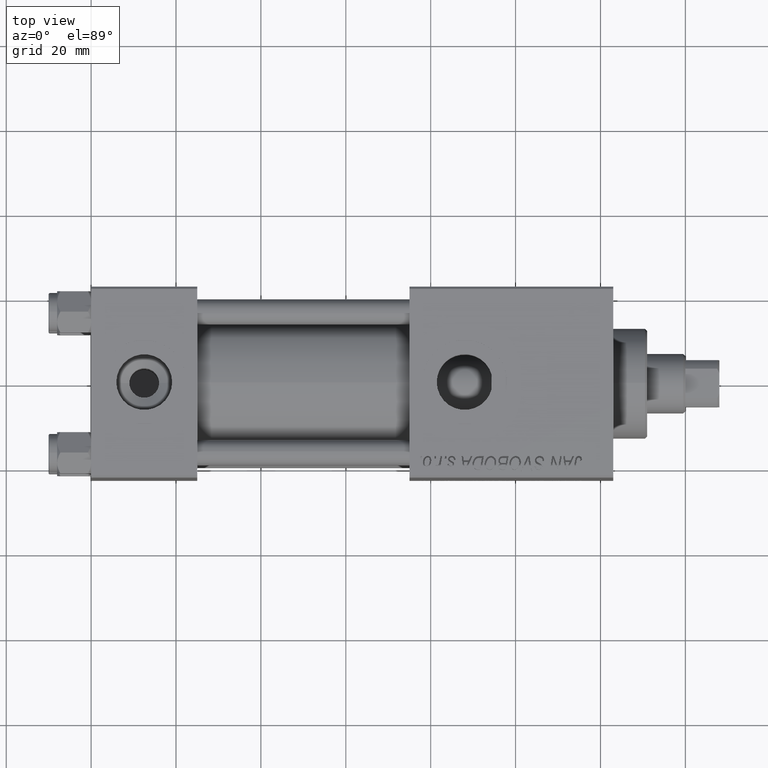
[diagram: clean part render]
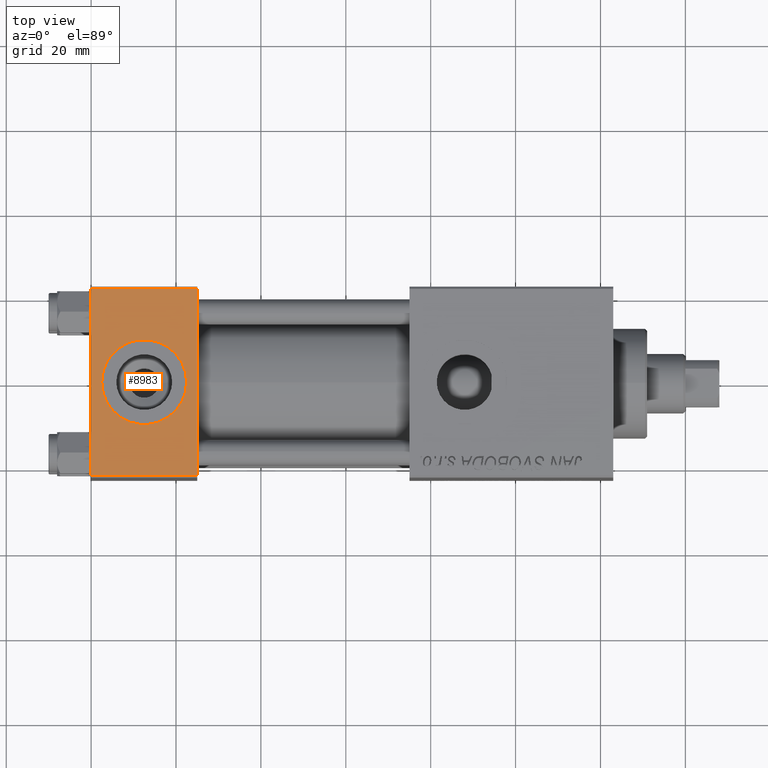
[diagram: same view with one face highlighted and labeled with its STEP entity id]
A machine part, top view. The second image highlights one B-rep face of the part: STEP entity #8983.
In plain terms, the highlighted planar face has unit normal (0, 0, -1).
Its self-contained STEP definition (entity closure, byte-faithful):
#844 = VECTOR ( 'NONE', #40998, 1000.000000000000000 ) ;
#997 = EDGE_LOOP ( 'NONE', ( #37634, #46307 ) ) ;
#1647 = AXIS2_PLACEMENT_3D ( 'NONE', #30273, #18955, #14973 ) ;
#2123 = CARTESIAN_POINT ( 'NONE',  ( 25.00000000000000000, -21.99999999999999289, 22.50000000000000000 ) ) ;
#2391 = LINE ( 'NONE', #34575, #40016 ) ;
#3189 = CARTESIAN_POINT ( 'NONE',  ( 12.50000000000000000, -1.734723475976807094E-15, 22.50000000000000000 ) ) ;
#3320 = EDGE_CURVE ( 'NONE', #19225, #48081, #19295, .T. ) ;
#4032 = CARTESIAN_POINT ( 'NONE',  ( 12.50000000000000000, -1.734723475976807094E-15, 22.50000000000000000 ) ) ;
#4442 = EDGE_CURVE ( 'NONE', #10366, #4899, #48364, .T. ) ;
#4899 = VERTEX_POINT ( 'NONE', #29724 ) ;
#6144 = ORIENTED_EDGE ( 'NONE', *, *, #28243, .T. ) ;
#6809 = FACE_BOUND ( 'NONE', #997, .T. ) ;
#7342 = VERTEX_POINT ( 'NONE', #34194 ) ;
#8983 = ADVANCED_FACE ( 'NONE', ( #6809, #34761 ), #22889, .F. ) ;
#9155 = AXIS2_PLACEMENT_3D ( 'NONE', #4032, #40428, #40695 ) ;
#9489 = VECTOR ( 'NONE', #41950, 1000.000000000000000 ) ;
#10366 = VERTEX_POINT ( 'NONE', #42030 ) ;
#10406 = ORIENTED_EDGE ( 'NONE', *, *, #43221, .T. ) ;
#10815 = LINE ( 'NONE', #2123, #9489 ) ;
#11125 = CARTESIAN_POINT ( 'NONE',  ( 22.50000000000000000, -1.734723475976807094E-15, 22.50000000000000000 ) ) ;
#14973 = DIRECTION ( 'NONE',  ( 0.000000000000000000, 1.000000000000000000, 7.709882115452476934E-17 ) ) ;
#18465 = VECTOR ( 'NONE', #36742, 1000.000000000000000 ) ;
#18955 = DIRECTION ( 'NONE',  ( 0.000000000000000000, 7.709882115452476934E-17, -1.000000000000000000 ) ) ;
#19225 = VERTEX_POINT ( 'NONE', #11125 ) ;
#19295 = CIRCLE ( 'NONE', #9155, 9.999999999999998224 ) ;
#19812 = DIRECTION ( 'NONE',  ( 0.000000000000000000, 0.000000000000000000, 1.000000000000000000 ) ) ;
#20658 = CARTESIAN_POINT ( 'NONE',  ( 0.000000000000000000, 22.50000000000000000, 22.50000000000000355 ) ) ;
#21220 = AXIS2_PLACEMENT_3D ( 'NONE', #3189, #19812, #39844 ) ;
#22889 = PLANE ( 'NONE',  #1647 ) ;
#28243 = EDGE_CURVE ( 'NONE', #4899, #45199, #10815, .T. ) ;
#29724 = CARTESIAN_POINT ( 'NONE',  ( 0.000000000000000000, -21.99999999999997868, 22.50000000000000000 ) ) ;
#30273 = CARTESIAN_POINT ( 'NONE',  ( 25.00000000000000000, 22.50000000000000000, 22.50000000000000355 ) ) ;
#30477 = CIRCLE ( 'NONE', #21220, 9.999999999999998224 ) ;
#32619 = CARTESIAN_POINT ( 'NONE',  ( 25.00000000000000000, -21.99999999999997868, 22.50000000000000000 ) ) ;
#34194 = CARTESIAN_POINT ( 'NONE',  ( 25.00000000000000000, 21.99999999999999289, 22.50000000000000355 ) ) ;
#34575 = CARTESIAN_POINT ( 'NONE',  ( 25.00000000000000000, 22.50000000000000000, 22.50000000000000355 ) ) ;
#34761 = FACE_OUTER_BOUND ( 'NONE', #44612, .T. ) ;
#35501 = EDGE_CURVE ( 'NONE', #7342, #45199, #2391, .T. ) ;
#36742 = DIRECTION ( 'NONE',  ( 0.000000000000000000, -1.000000000000000000, -7.709882115452476934E-17 ) ) ;
#37634 = ORIENTED_EDGE ( 'NONE', *, *, #3320, .F. ) ;
#39844 = DIRECTION ( 'NONE',  ( 1.000000000000000000, 0.000000000000000000, 0.000000000000000000 ) ) ;
#40016 = VECTOR ( 'NONE', #45929, 1000.000000000000000 ) ;
#40428 = DIRECTION ( 'NONE',  ( 0.000000000000000000, 0.000000000000000000, 1.000000000000000000 ) ) ;
#40695 = DIRECTION ( 'NONE',  ( 1.000000000000000000, 0.000000000000000000, 0.000000000000000000 ) ) ;
#40998 = DIRECTION ( 'NONE',  ( -1.000000000000000000, 0.000000000000000000, 0.000000000000000000 ) ) ;
#41950 = DIRECTION ( 'NONE',  ( 1.000000000000000000, 0.000000000000000000, 0.000000000000000000 ) ) ;
#42030 = CARTESIAN_POINT ( 'NONE',  ( 0.000000000000000000, 21.99999999999999289, 22.50000000000000355 ) ) ;
#42903 = ORIENTED_EDGE ( 'NONE', *, *, #4442, .T. ) ;
#43221 = EDGE_CURVE ( 'NONE', #7342, #10366, #48655, .T. ) ;
#44612 = EDGE_LOOP ( 'NONE', ( #42903, #6144, #45814, #10406 ) ) ;
#45199 = VERTEX_POINT ( 'NONE', #32619 ) ;
#45814 = ORIENTED_EDGE ( 'NONE', *, *, #35501, .F. ) ;
#45929 = DIRECTION ( 'NONE',  ( 0.000000000000000000, -1.000000000000000000, -7.709882115452476934E-17 ) ) ;
#46307 = ORIENTED_EDGE ( 'NONE', *, *, #46724, .F. ) ;
#46724 = EDGE_CURVE ( 'NONE', #48081, #19225, #30477, .T. ) ;
#48081 = VERTEX_POINT ( 'NONE', #49808 ) ;
#48364 = LINE ( 'NONE', #20658, #18465 ) ;
#48655 = LINE ( 'NONE', #48922, #844 ) ;
#48922 = CARTESIAN_POINT ( 'NONE',  ( 0.000000000000000000, 21.99999999999999289, 22.50000000000000355 ) ) ;
#49808 = CARTESIAN_POINT ( 'NONE',  ( 2.500000000000003997, -5.100766768294543310E-16, 22.50000000000000000 ) ) ;